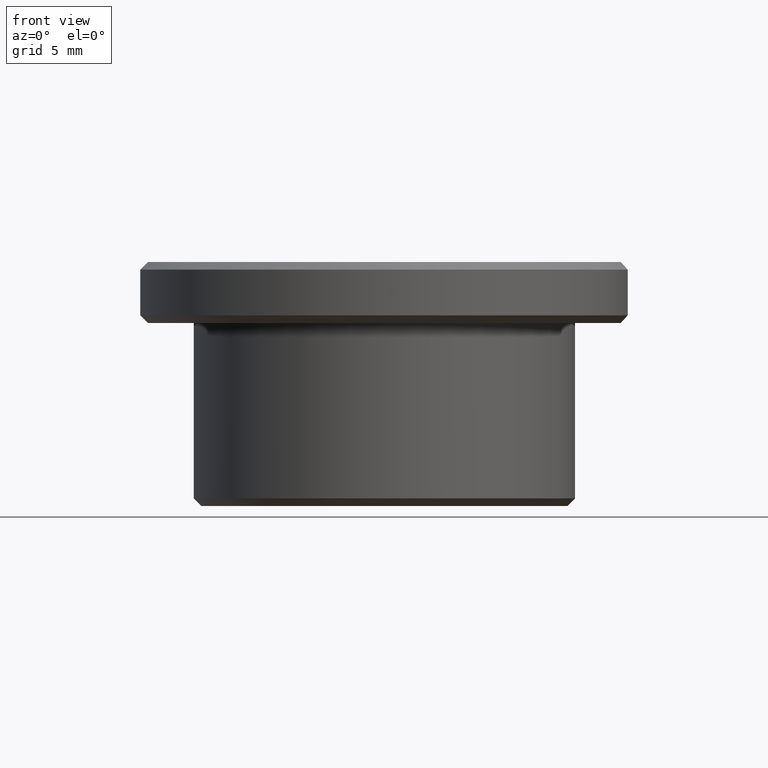
[diagram: clean part render]
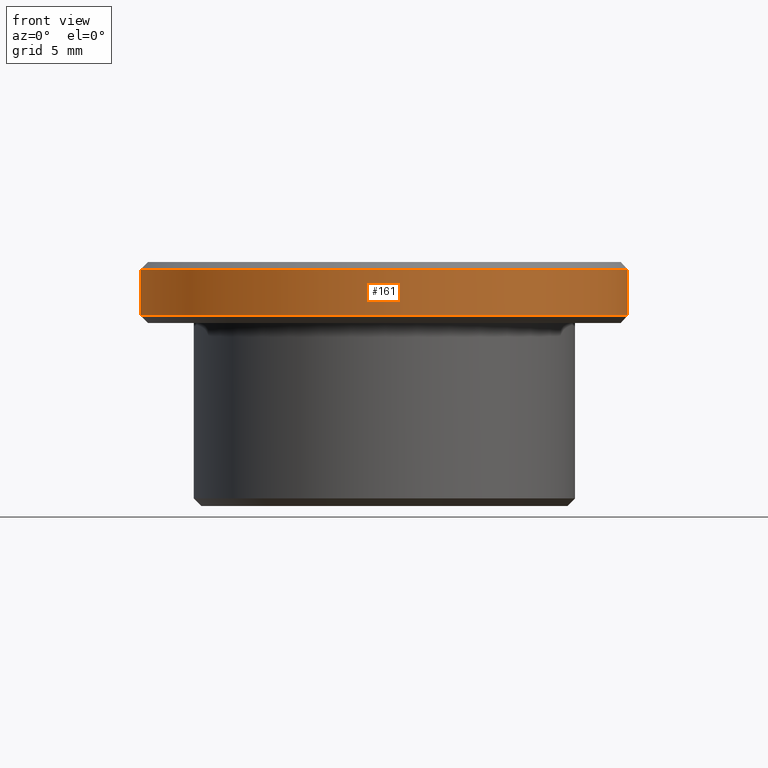
[diagram: same view with one face highlighted and labeled with its STEP entity id]
A machine part, front view. The second image highlights one B-rep face of the part: STEP entity #161.
In plain terms, the highlighted cylindrical surface (bore or boss wall) has radius 16 mm, axis along (-0, 0, -1).
Its self-contained STEP definition (entity closure, byte-faithful):
#161=ADVANCED_FACE('',(#195,#196),#197,.T.);
#195=FACE_OUTER_BOUND('',#244,.T.);
#196=FACE_OUTER_BOUND('',#245,.T.);
#197=CYLINDRICAL_SURFACE('',#246,0.016);
#244=EDGE_LOOP('',(#320));
#245=EDGE_LOOP('',(#321));
#246=AXIS2_PLACEMENT_3D('',#322,#323,#324);
#320=ORIENTED_EDGE('',*,*,#390,.T.);
#321=ORIENTED_EDGE('',*,*,#391,.F.);
#322=CARTESIAN_POINT('',(0.0,0.0,0.0));
#323=DIRECTION('',(0.0,-6.12323399573677E-017,-1.0));
#324=DIRECTION('',(0.0,1.0,-6.12323399573677E-017));
#390=EDGE_CURVE('',#428,#428,#429,.T.);
#391=EDGE_CURVE('',#430,#430,#431,.T.);
#428=VERTEX_POINT('',#505);
#429=CIRCLE('',#506,0.016);
#430=VERTEX_POINT('',#507);
#431=CIRCLE('',#508,0.016);
#505=CARTESIAN_POINT('',(0.0,0.016,0.0155));
#506=AXIS2_PLACEMENT_3D('',#549,#550,#551);
#507=CARTESIAN_POINT('',(0.0,0.016,0.0125));
#508=AXIS2_PLACEMENT_3D('',#552,#553,#554);
#549=CARTESIAN_POINT('',(0.0,0.0,0.0155));
#550=DIRECTION('',(0.0,-6.12323399573677E-017,-1.0));
#551=DIRECTION('',(0.0,1.0,-6.12323399573677E-017));
#552=CARTESIAN_POINT('',(0.0,0.0,0.0125));
#553=DIRECTION('',(0.0,-6.12323399573677E-017,-1.0));
#554=DIRECTION('',(0.0,1.0,-6.12323399573677E-017));